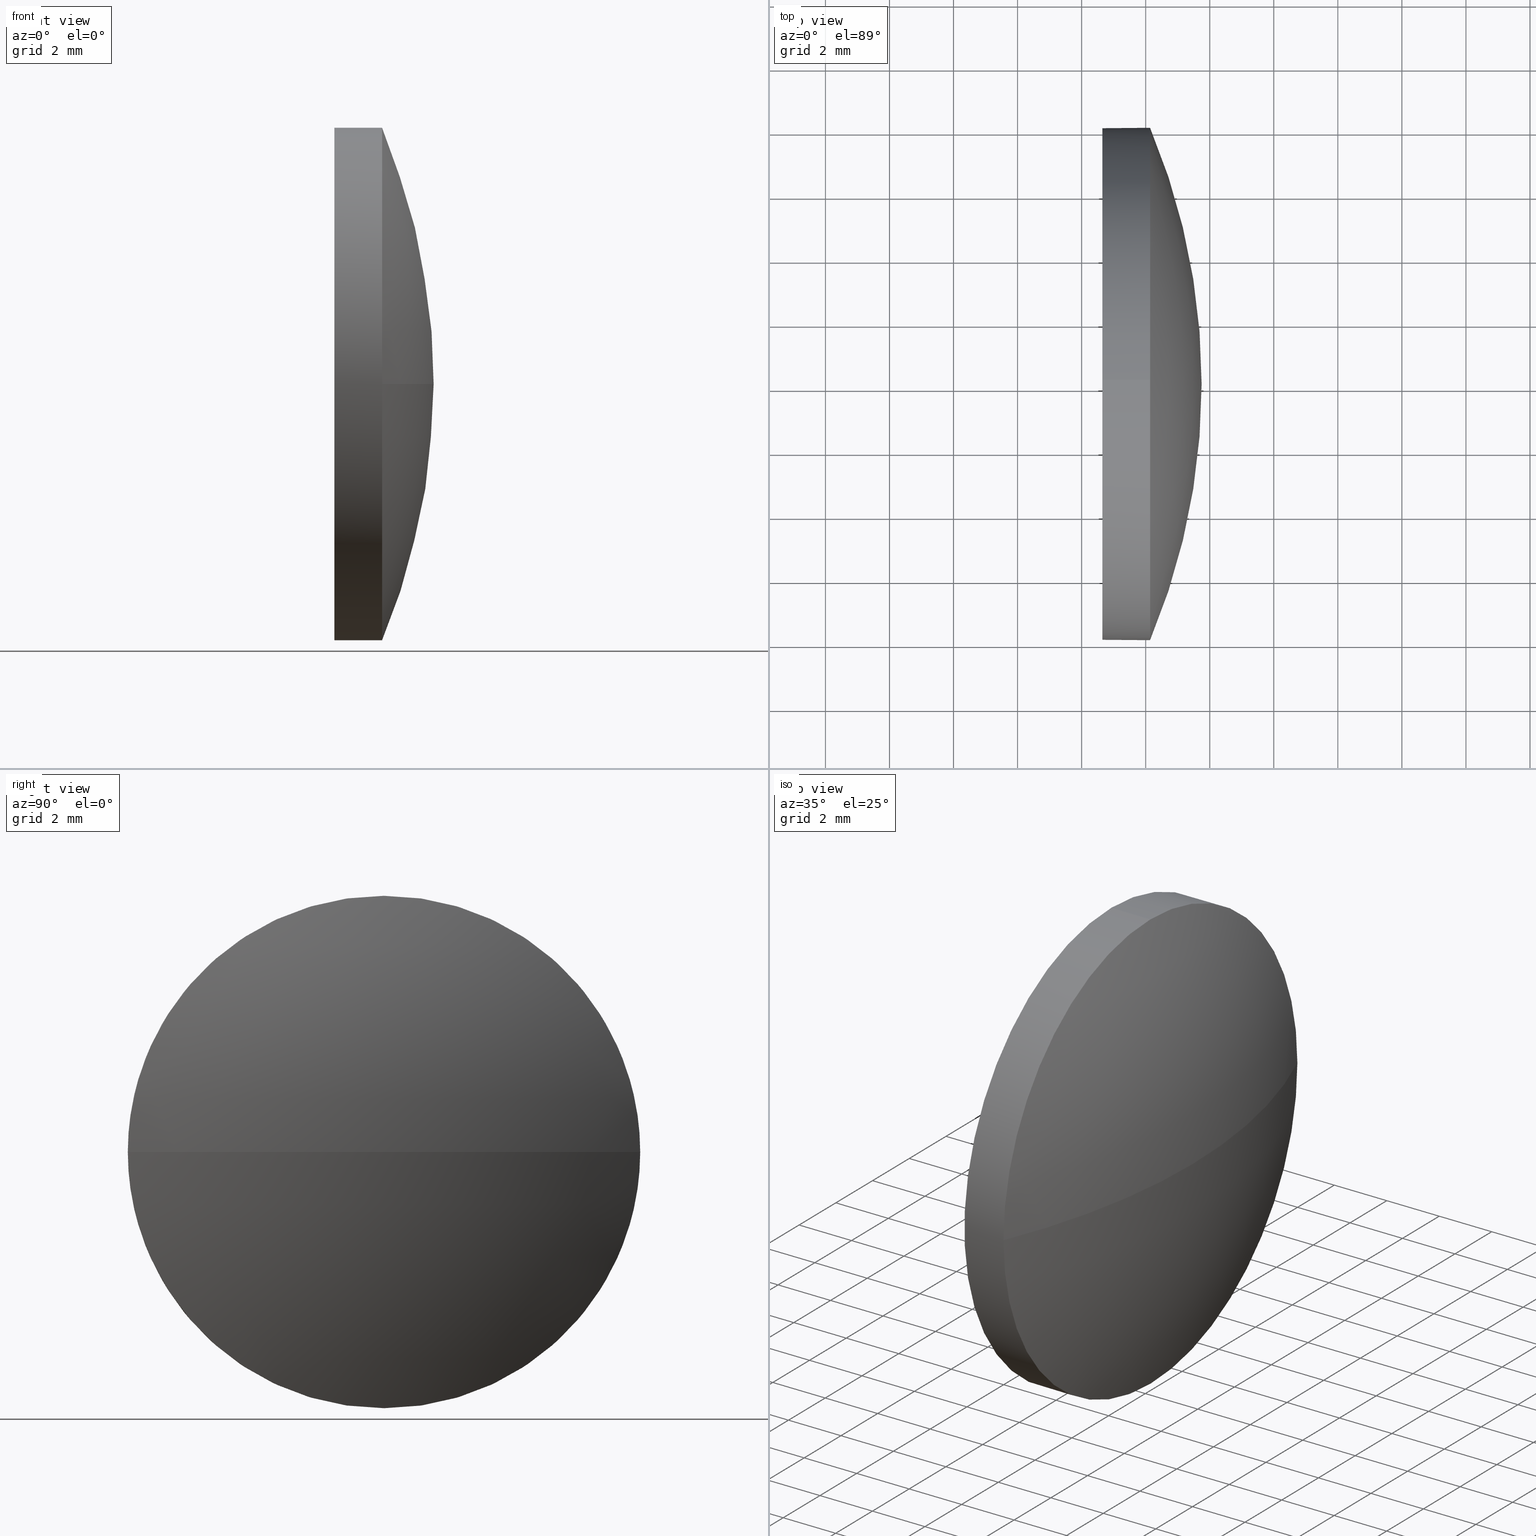
[diagram: canonical four-view strip — front | top / right | iso, engineering-drawing reading convention]
A machine part, canonical four-view strip (front | top / right | iso — engineering-drawing reading convention). The complete STEP part file that produces these views, byte-faithful:
ISO-10303-21;
HEADER;
FILE_DESCRIPTION (( 'STEP AP214' ),
    '1' );
FILE_NAME ('100114.STEP',
    '2019-05-14T02:27:20',
    ( '' ),
    ( '' ),
    'SwSTEP 2.0',
    'SolidWorks 2016',
    '' );
FILE_SCHEMA (( 'AUTOMOTIVE_DESIGN' ));
ENDSEC;

DATA;
#1 = SURFACE_STYLE_USAGE ( .BOTH. , #59 ) ;
#2 = VECTOR ( 'NONE', #83, 1000.000000000000000 ) ;
#3 = AXIS2_PLACEMENT_3D ( 'NONE', #84, #75, #16 ) ;
#4 = CIRCLE ( 'NONE', #74, 7.999999999999992900 ) ;
#5 = STYLED_ITEM ( 'NONE', ( #120 ), #11 ) ;
#6 = VERTEX_POINT ( 'NONE', #27 ) ;
#7 = AXIS2_PLACEMENT_3D ( 'NONE', #14, #127, #86 ) ;
#8 = CYLINDRICAL_SURFACE ( 'NONE', #182, 7.999999999999992900 ) ;
#9 = CARTESIAN_POINT ( 'NONE',  ( 538.1372096364605100, 114.0833661660866900, 0.0000000000000000000 ) ) ;
#10 = AXIS2_PLACEMENT_3D ( 'NONE', #12, #122, #57 ) ;
#11 = ADVANCED_BREP_SHAPE_REPRESENTATION ( '100114', ( #101, #51 ), #179 ) ;
#12 = CARTESIAN_POINT ( 'NONE',  ( 538.1372096364605100, 122.0833661660866600, 0.0000000000000000000 ) ) ;
#13 = CARTESIAN_POINT ( 'NONE',  ( 538.1372096364605100, 122.0833661660866600, 0.0000000000000000000 ) ) ;
#14 = CARTESIAN_POINT ( 'NONE',  ( 519.0664332389450200, 122.0833661660867100, 0.0000000000000000000 ) ) ;
#15 = PRESENTATION_LAYER_ASSIGNMENT (  '', '', ( #129 ) ) ;
#16 = DIRECTION ( 'NONE',  ( 0.0000000000000000000, 0.0000000000000000000, 1.000000000000000000 ) ) ;
#17 = ORIENTED_EDGE ( 'NONE', *, *, #53, .T. ) ;
#18 = PRODUCT_DEFINITION_FORMATION_WITH_SPECIFIED_SOURCE ( '�κ�', '', #42, .NOT_KNOWN. ) ;
#19 = CIRCLE ( 'NONE', #159, 20.68077639751542300 ) ;
#20 = PRESENTATION_LAYER_ASSIGNMENT (  '', '', ( #5 ) ) ;
#21 = APPLICATION_CONTEXT ( 'automotive_design' ) ;
#22 = EDGE_LOOP ( 'NONE', ( #132, #17, #158, #98 ) ) ;
#23 = MECHANICAL_DESIGN_GEOMETRIC_PRESENTATION_REPRESENTATION (  '', ( #129 ), #147 ) ;
#24 = CIRCLE ( 'NONE', #3, 7.999999999999992900 ) ;
#25 = VERTEX_POINT ( 'NONE', #153 ) ;
#26 = DIRECTION ( 'NONE',  ( -1.000000000000000000, 0.0000000000000000000, 0.0000000000000000000 ) ) ;
#27 = CARTESIAN_POINT ( 'NONE',  ( 539.7472096364605200, 122.0833661660867100, 0.0000000000000000000 ) ) ;
#28 = FACE_OUTER_BOUND ( 'NONE', #90, .T. ) ;
#29 = PRODUCT_RELATED_PRODUCT_CATEGORY ( 'part', '', ( #42 ) ) ;
#30 = CARTESIAN_POINT ( 'NONE',  ( 538.1372096364605100, 130.0833661660866500, 9.797174393178766500E-016 ) ) ;
#31 =( LENGTH_UNIT ( ) NAMED_UNIT ( * ) SI_UNIT ( .MILLI., .METRE. ) );
#32 = CARTESIAN_POINT ( 'NONE',  ( 536.6472096364605000, 122.0833661660866600, 0.0000000000000000000 ) ) ;
#33 = CARTESIAN_POINT ( 'NONE',  ( 538.1372096364605100, 122.0833661660866600, -7.999999999999992900 ) ) ;
#34 = COLOUR_RGB ( '',1.000000000000000000, 1.000000000000000000, 1.000000000000000000 ) ;
#35 =( LENGTH_UNIT ( ) NAMED_UNIT ( * ) SI_UNIT ( .MILLI., .METRE. ) );
#36 = ADVANCED_FACE ( 'NONE', ( #28 ), #181, .F. ) ;
#37 = EDGE_CURVE ( 'NONE', #138, #180, #40, .T. ) ;
#38 = EDGE_CURVE ( 'NONE', #166, #133, #56, .T. ) ;
#39 = LINE ( 'NONE', #143, #2 ) ;
#40 = CIRCLE ( 'NONE', #10, 7.999999999999992900 ) ;
#41 =( GEOMETRIC_REPRESENTATION_CONTEXT ( 3 ) GLOBAL_UNCERTAINTY_ASSIGNED_CONTEXT ( ( #118 ) ) GLOBAL_UNIT_ASSIGNED_CONTEXT ( ( #35, #114, #163 ) ) REPRESENTATION_CONTEXT ( 'NONE', 'WORKASPACE' ) );
#42 = PRODUCT ( '100114', '100114', '', ( #67 ) ) ;
#43 = CIRCLE ( 'NONE', #82, 7.999999999999992900 ) ;
#44 = DIRECTION ( 'NONE',  ( 0.0000000000000000000, 0.0000000000000000000, 1.000000000000000000 ) ) ;
#45 = DIRECTION ( 'NONE',  ( 0.0000000000000000000, -1.224646799147353200E-016, 1.000000000000000000 ) ) ;
#46 = FILL_AREA_STYLE ('',( #110 ) ) ;
#47 = ORIENTED_EDGE ( 'NONE', *, *, #65, .F. ) ;
#48 = AXIS2_PLACEMENT_3D ( 'NONE', #137, #92, #26 ) ;
#49 = DIRECTION ( 'NONE',  ( -1.000000000000000000, -0.0000000000000000000, -0.0000000000000000000 ) ) ;
#50 = APPLICATION_CONTEXT ( 'automotive_design' ) ;
#51 = AXIS2_PLACEMENT_3D ( 'NONE', #123, #116, #161 ) ;
#52 = ORIENTED_EDGE ( 'NONE', *, *, #78, .F. ) ;
#53 = EDGE_CURVE ( 'NONE', #6, #64, #102, .T. ) ;
#54 = EDGE_LOOP ( 'NONE', ( #79, #104, #76, #47 ) ) ;
#55 = DIRECTION ( 'NONE',  ( 0.0000000000000000000, 0.0000000000000000000, -1.000000000000000000 ) ) ;
#56 = LINE ( 'NONE', #169, #85 ) ;
#57 = DIRECTION ( 'NONE',  ( 0.0000000000000000000, 0.0000000000000000000, 1.000000000000000000 ) ) ;
#58 = FILL_AREA_STYLE ('',( #160 ) ) ;
#59 = SURFACE_SIDE_STYLE ('',( #165 ) ) ;
#60 = DIRECTION ( 'NONE',  ( -1.000000000000000000, -0.0000000000000000000, -0.0000000000000000000 ) ) ;
#61 = DIRECTION ( 'NONE',  ( 0.0000000000000000000, 0.0000000000000000000, 1.000000000000000000 ) ) ;
#62 = DIRECTION ( 'NONE',  ( 0.0000000000000000000, 0.0000000000000000000, 1.000000000000000000 ) ) ;
#63 = ADVANCED_FACE ( 'NONE', ( #185 ), #164, .T. ) ;
#64 = VERTEX_POINT ( 'NONE', #9 ) ;
#65 = EDGE_CURVE ( 'NONE', #64, #166, #91, .T. ) ;
#66 = ADVANCED_FACE ( 'NONE', ( #69 ), #8, .T. ) ;
#67 = PRODUCT_CONTEXT ( 'NONE', #50, 'mechanical' ) ;
#68 = ORIENTED_EDGE ( 'NONE', *, *, #119, .T. ) ;
#69 = FACE_OUTER_BOUND ( 'NONE', #176, .T. ) ;
#70 = DIRECTION ( 'NONE',  ( 1.000000000000000000, 0.0000000000000000000, 0.0000000000000000000 ) ) ;
#71 = CARTESIAN_POINT ( 'NONE',  ( 536.6472096364605000, 122.0833661660866600, 7.999999999999992900 ) ) ;
#72 =( NAMED_UNIT ( * ) SI_UNIT ( $, .STERADIAN. ) SOLID_ANGLE_UNIT ( ) );
#73 = UNCERTAINTY_MEASURE_WITH_UNIT (LENGTH_MEASURE( 1.000000000000000100E-005 ), #31, 'distance_accuracy_value', 'NONE');
#74 = AXIS2_PLACEMENT_3D ( 'NONE', #109, #60, #157 ) ;
#75 = DIRECTION ( 'NONE',  ( -1.000000000000000000, -0.0000000000000000000, -0.0000000000000000000 ) ) ;
#76 = ORIENTED_EDGE ( 'NONE', *, *, #108, .F. ) ;
#77 = ORIENTED_EDGE ( 'NONE', *, *, #65, .T. ) ;
#78 = EDGE_CURVE ( 'NONE', #133, #25, #24, .T. ) ;
#79 = ORIENTED_EDGE ( 'NONE', *, *, #53, .F. ) ;
#80 = AXIS2_PLACEMENT_3D ( 'NONE', #96, #44, #113 ) ;
#81 = CARTESIAN_POINT ( 'NONE',  ( 519.0664332389450200, 122.0833661660867100, 0.0000000000000000000 ) ) ;
#82 = AXIS2_PLACEMENT_3D ( 'NONE', #13, #107, #62 ) ;
#83 = DIRECTION ( 'NONE',  ( -1.000000000000000000, -0.0000000000000000000, -0.0000000000000000000 ) ) ;
#84 = CARTESIAN_POINT ( 'NONE',  ( 536.6472096364605000, 122.0833661660866600, 0.0000000000000000000 ) ) ;
#85 = VECTOR ( 'NONE', #167, 1000.000000000000000 ) ;
#86 = DIRECTION ( 'NONE',  ( 0.0000000000000000000, -1.000000000000000000, 0.0000000000000000000 ) ) ;
#87 = CARTESIAN_POINT ( 'NONE',  ( 538.1372096364605100, 122.0833661660866600, 7.999999999999992900 ) ) ;
#88 = EDGE_CURVE ( 'NONE', #6, #138, #19, .T. ) ;
#89 = ORIENTED_EDGE ( 'NONE', *, *, #105, .T. ) ;
#90 = EDGE_LOOP ( 'NONE', ( #93, #172 ) ) ;
#91 = CIRCLE ( 'NONE', #171, 7.999999999999992900 ) ;
#92 = DIRECTION ( 'NONE',  ( 0.0000000000000000000, 0.0000000000000000000, -1.000000000000000000 ) ) ;
#93 = ORIENTED_EDGE ( 'NONE', *, *, #78, .T. ) ;
#94 = DIRECTION ( 'NONE',  ( -1.000000000000000000, -0.0000000000000000000, -0.0000000000000000000 ) ) ;
#95 = CARTESIAN_POINT ( 'NONE',  ( 534.7243929316149400, 122.0833661660866600, 0.0000000000000000000 ) ) ;
#96 = CARTESIAN_POINT ( 'NONE',  ( 519.0664332389450200, 122.0833661660867100, 0.0000000000000000000 ) ) ;
#97 =( LENGTH_UNIT ( ) NAMED_UNIT ( * ) SI_UNIT ( .MILLI., .METRE. ) );
#98 = ORIENTED_EDGE ( 'NONE', *, *, #37, .F. ) ;
#99 = FACE_OUTER_BOUND ( 'NONE', #22, .T. ) ;
#100 = PRESENTATION_STYLE_ASSIGNMENT (( #184 ) ) ;
#101 = MANIFOLD_SOLID_BREP ( '��ת1', #126 ) ;
#102 = CIRCLE ( 'NONE', #48, 20.68077639751542300 ) ;
#103 = DIRECTION ( 'NONE',  ( 0.0000000000000000000, 0.0000000000000000000, 1.000000000000000000 ) ) ;
#104 = ORIENTED_EDGE ( 'NONE', *, *, #88, .T. ) ;
#105 = EDGE_CURVE ( 'NONE', #180, #25, #39, .T. ) ;
#106 = UNCERTAINTY_MEASURE_WITH_UNIT (LENGTH_MEASURE( 1.000000000000000100E-005 ), #97, 'distance_accuracy_value', 'NONE');
#107 = DIRECTION ( 'NONE',  ( -1.000000000000000000, -0.0000000000000000000, -0.0000000000000000000 ) ) ;
#108 = EDGE_CURVE ( 'NONE', #166, #138, #4, .T. ) ;
#109 = CARTESIAN_POINT ( 'NONE',  ( 538.1372096364605100, 122.0833661660866600, 0.0000000000000000000 ) ) ;
#110 = FILL_AREA_STYLE_COLOUR ( '', #34 ) ;
#111 =( NAMED_UNIT ( * ) PLANE_ANGLE_UNIT ( ) SI_UNIT ( $, .RADIAN. ) );
#112 = ORIENTED_EDGE ( 'NONE', *, *, #38, .T. ) ;
#113 = DIRECTION ( 'NONE',  ( 0.0000000000000000000, -1.000000000000000000, 0.0000000000000000000 ) ) ;
#114 =( NAMED_UNIT ( * ) PLANE_ANGLE_UNIT ( ) SI_UNIT ( $, .RADIAN. ) );
#115 = COLOUR_RGB ( '',1.000000000000000000, 1.000000000000000000, 1.000000000000000000 ) ;
#116 = DIRECTION ( 'NONE',  ( 0.0000000000000000000, 0.0000000000000000000, 1.000000000000000000 ) ) ;
#117 = ADVANCED_FACE ( 'NONE', ( #99 ), #135, .T. ) ;
#118 = UNCERTAINTY_MEASURE_WITH_UNIT (LENGTH_MEASURE( 1.000000000000000100E-005 ), #35, 'distance_accuracy_value', 'NONE');
#119 = EDGE_CURVE ( 'NONE', #180, #64, #43, .T. ) ;
#120 = PRESENTATION_STYLE_ASSIGNMENT (( #1 ) ) ;
#121 = ORIENTED_EDGE ( 'NONE', *, *, #38, .F. ) ;
#122 = DIRECTION ( 'NONE',  ( -1.000000000000000000, -0.0000000000000000000, -0.0000000000000000000 ) ) ;
#123 = CARTESIAN_POINT ( 'NONE',  ( 0.0000000000000000000, 0.0000000000000000000, 0.0000000000000000000 ) ) ;
#124 = PRODUCT_DEFINITION_CONTEXT ( 'detailed design', #21, 'design' ) ;
#125 = SPHERICAL_SURFACE ( 'NONE', #80, 20.68077639751541600 ) ;
#126 = CLOSED_SHELL ( 'NONE', ( #66, #146, #117, #63, #36 ) ) ;
#127 = DIRECTION ( 'NONE',  ( 0.0000000000000000000, 0.0000000000000000000, 1.000000000000000000 ) ) ;
#128 = DIRECTION ( 'NONE',  ( -1.000000000000000000, -0.0000000000000000000, -0.0000000000000000000 ) ) ;
#129 = STYLED_ITEM ( 'NONE', ( #100 ), #101 ) ;
#130 = ORIENTED_EDGE ( 'NONE', *, *, #37, .T. ) ;
#131 = PRODUCT_DEFINITION_SHAPE ( 'NONE', 'NONE',  #134 ) ;
#132 = ORIENTED_EDGE ( 'NONE', *, *, #88, .F. ) ;
#133 = VERTEX_POINT ( 'NONE', #71 ) ;
#134 = PRODUCT_DEFINITION ( 'δ֪', '', #18, #124 ) ;
#135 = SPHERICAL_SURFACE ( 'NONE', #7, 20.68077639751541600 ) ;
#136 = ORIENTED_EDGE ( 'NONE', *, *, #108, .T. ) ;
#137 = CARTESIAN_POINT ( 'NONE',  ( 519.0664332389450200, 122.0833661660867100, 0.0000000000000000000 ) ) ;
#138 = VERTEX_POINT ( 'NONE', #30 ) ;
#139 = CARTESIAN_POINT ( 'NONE',  ( 536.6472096364605000, 122.0833661660866600, 0.0000000000000000000 ) ) ;
#140 = EDGE_LOOP ( 'NONE', ( #175, #68, #77, #112, #145 ) ) ;
#141 = EDGE_CURVE ( 'NONE', #25, #133, #148, .T. ) ;
#142 = CARTESIAN_POINT ( 'NONE',  ( 538.1372096364605100, 122.0833661660866600, 0.0000000000000000000 ) ) ;
#143 = CARTESIAN_POINT ( 'NONE',  ( 534.7243929316149400, 122.0833661660866600, -7.999999999999992900 ) ) ;
#144 = SHAPE_DEFINITION_REPRESENTATION ( #131, #11 ) ;
#145 = ORIENTED_EDGE ( 'NONE', *, *, #141, .F. ) ;
#146 = ADVANCED_FACE ( 'NONE', ( #151 ), #125, .T. ) ;
#147 =( GEOMETRIC_REPRESENTATION_CONTEXT ( 3 ) GLOBAL_UNCERTAINTY_ASSIGNED_CONTEXT ( ( #73 ) ) GLOBAL_UNIT_ASSIGNED_CONTEXT ( ( #31, #156, #72 ) ) REPRESENTATION_CONTEXT ( 'NONE', 'WORKASPACE' ) );
#148 = CIRCLE ( 'NONE', #150, 7.999999999999992900 ) ;
#149 = APPLICATION_PROTOCOL_DEFINITION ( 'draft international standard', 'automotive_design', 1998, #21 ) ;
#150 = AXIS2_PLACEMENT_3D ( 'NONE', #32, #128, #61 ) ;
#151 = FACE_OUTER_BOUND ( 'NONE', #54, .T. ) ;
#152 = AXIS2_PLACEMENT_3D ( 'NONE', #139, #70, #55 ) ;
#153 = CARTESIAN_POINT ( 'NONE',  ( 536.6472096364605000, 122.0833661660866600, -7.999999999999992900 ) ) ;
#154 = DIRECTION ( 'NONE',  ( 0.0000000000000000000, 0.0000000000000000000, 1.000000000000000000 ) ) ;
#155 = DIRECTION ( 'NONE',  ( -1.000000000000000000, -0.0000000000000000000, -0.0000000000000000000 ) ) ;
#156 =( NAMED_UNIT ( * ) PLANE_ANGLE_UNIT ( ) SI_UNIT ( $, .RADIAN. ) );
#157 = DIRECTION ( 'NONE',  ( 0.0000000000000000000, 0.0000000000000000000, 1.000000000000000000 ) ) ;
#158 = ORIENTED_EDGE ( 'NONE', *, *, #119, .F. ) ;
#159 = AXIS2_PLACEMENT_3D ( 'NONE', #81, #45, #183 ) ;
#160 = FILL_AREA_STYLE_COLOUR ( '', #115 ) ;
#161 = DIRECTION ( 'NONE',  ( 1.000000000000000000, 0.0000000000000000000, 0.0000000000000000000 ) ) ;
#162 = AXIS2_PLACEMENT_3D ( 'NONE', #95, #155, #154 ) ;
#163 =( NAMED_UNIT ( * ) SI_UNIT ( $, .STERADIAN. ) SOLID_ANGLE_UNIT ( ) );
#164 = CYLINDRICAL_SURFACE ( 'NONE', #162, 7.999999999999992900 ) ;
#165 = SURFACE_STYLE_FILL_AREA ( #58 ) ;
#166 = VERTEX_POINT ( 'NONE', #87 ) ;
#167 = DIRECTION ( 'NONE',  ( -1.000000000000000000, -0.0000000000000000000, -0.0000000000000000000 ) ) ;
#168 = SURFACE_STYLE_FILL_AREA ( #46 ) ;
#169 = CARTESIAN_POINT ( 'NONE',  ( 534.7243929316149400, 122.0833661660866600, 7.999999999999992900 ) ) ;
#170 = APPLICATION_PROTOCOL_DEFINITION ( 'draft international standard', 'automotive_design', 1998, #50 ) ;
#171 = AXIS2_PLACEMENT_3D ( 'NONE', #142, #49, #173 ) ;
#172 = ORIENTED_EDGE ( 'NONE', *, *, #141, .T. ) ;
#173 = DIRECTION ( 'NONE',  ( 0.0000000000000000000, 0.0000000000000000000, 1.000000000000000000 ) ) ;
#174 =( NAMED_UNIT ( * ) SI_UNIT ( $, .STERADIAN. ) SOLID_ANGLE_UNIT ( ) );
#175 = ORIENTED_EDGE ( 'NONE', *, *, #105, .F. ) ;
#176 = EDGE_LOOP ( 'NONE', ( #130, #89, #52, #121, #136 ) ) ;
#177 = MECHANICAL_DESIGN_GEOMETRIC_PRESENTATION_REPRESENTATION (  '', ( #5 ), #41 ) ;
#178 = CARTESIAN_POINT ( 'NONE',  ( 534.7243929316149400, 122.0833661660866600, 0.0000000000000000000 ) ) ;
#179 =( GEOMETRIC_REPRESENTATION_CONTEXT ( 3 ) GLOBAL_UNCERTAINTY_ASSIGNED_CONTEXT ( ( #106 ) ) GLOBAL_UNIT_ASSIGNED_CONTEXT ( ( #97, #111, #174 ) ) REPRESENTATION_CONTEXT ( 'NONE', 'WORKASPACE' ) );
#180 = VERTEX_POINT ( 'NONE', #33 ) ;
#181 = PLANE ( 'NONE',  #152 ) ;
#182 = AXIS2_PLACEMENT_3D ( 'NONE', #178, #94, #103 ) ;
#183 = DIRECTION ( 'NONE',  ( 0.0000000000000000000, -1.000000000000000000, -1.224646799147352700E-016 ) ) ;
#184 = SURFACE_STYLE_USAGE ( .BOTH. , #186 ) ;
#185 = FACE_OUTER_BOUND ( 'NONE', #140, .T. ) ;
#186 = SURFACE_SIDE_STYLE ('',( #168 ) ) ;
ENDSEC;
END-ISO-10303-21;
